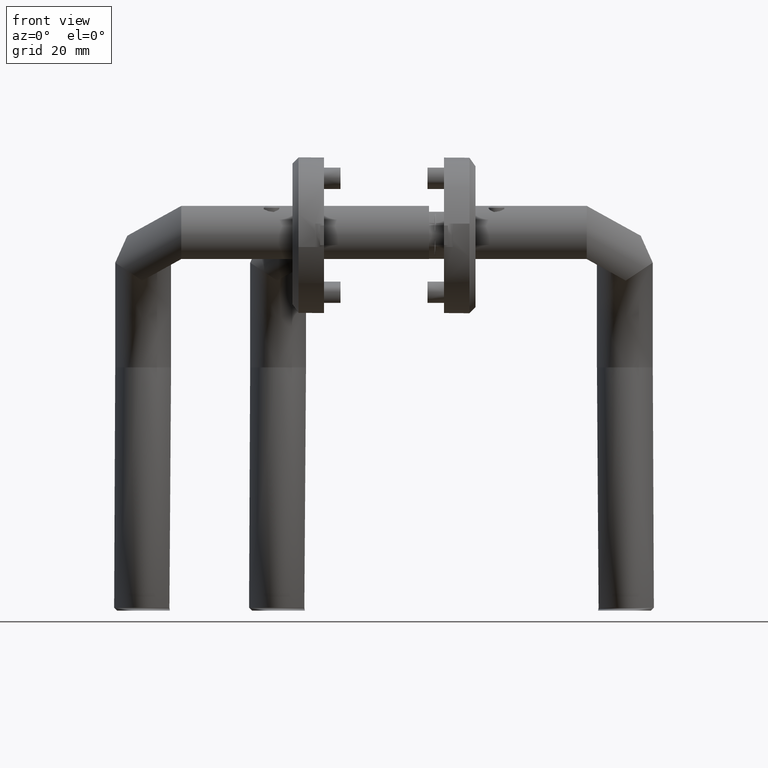
[diagram: clean part render]
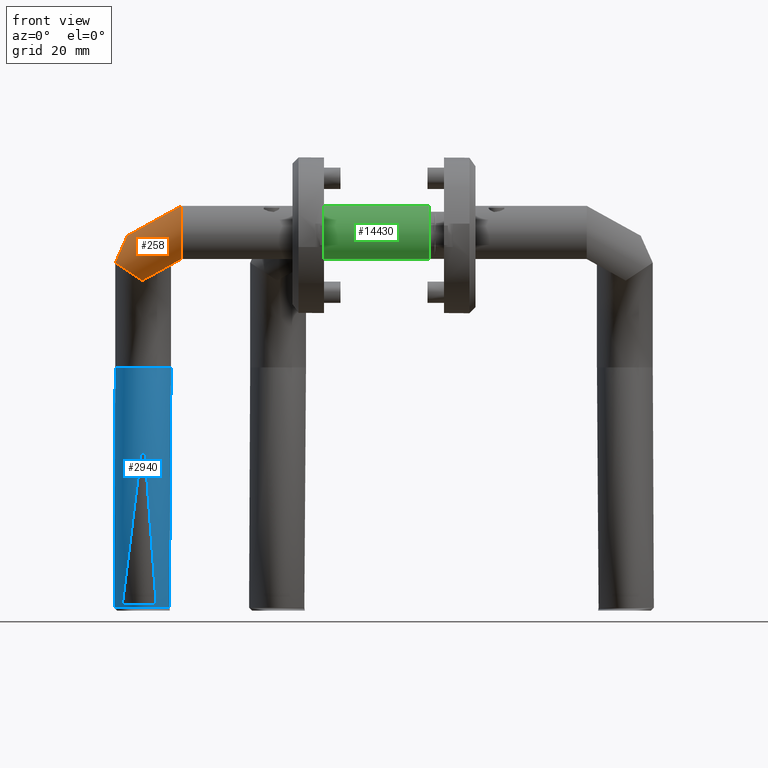
[diagram: same view with three faces highlighted in distinct colors, each labeled with its STEP entity id]
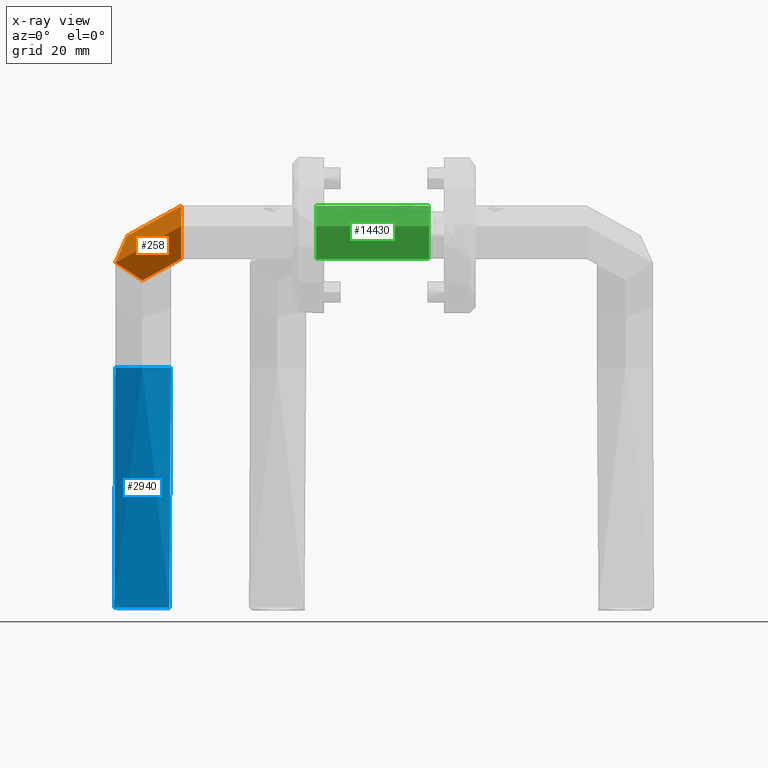
[diagram: x-ray of the same camera — body ghosted, the three highlighted faces saturated]
A machine part, front view with three faces highlighted in distinct colors.
The next image is the same camera in x-ray (body ghosted, the three faces saturated) — at least one of them is partly hidden behind the body in this view.
Their STEP definitions:

[orange] entity #258 — the highlighted toroidal blend (fillet) surface has major radius 12.5828 mm and minor (blend) radius 9.8 mm.
#60 = EDGE_CURVE ( 'NONE', #36857, #36857, #34073, .T. ) ;
#258 = ADVANCED_FACE ( 'NONE', ( #4064, #32762 ), #23757, .T. ) ;
#372 = CIRCLE ( 'NONE', #3111, 9.799999999999998900 ) ;
#389 = CARTESIAN_POINT ( 'NONE',  ( -9.799999999999997200, -1.734723475976809100E-015, 37.62000000000002600 ) ) ;
#2066 = CARTESIAN_POINT ( 'NONE',  ( -9.949874806381942000, 14.99999999999999800, 55.62000000000005400 ) ) ;
#3111 = AXIS2_PLACEMENT_3D ( 'NONE', #389, #31972, #3270 ) ;
#3270 = DIRECTION ( 'NONE',  ( 1.000000000000000000, 0.0000000000000000000, 0.0000000000000000000 ) ) ;
#4064 = FACE_OUTER_BOUND ( 'NONE', #31751, .T. ) ;
#5427 = AXIS2_PLACEMENT_3D ( 'NONE', #11252, #22555, #14413 ) ;
#6390 = VERTEX_POINT ( 'NONE', #20257 ) ;
#7420 = EDGE_LOOP ( 'NONE', ( #31808 ) ) ;
#8936 = EDGE_CURVE ( 'NONE', #6390, #6390, #372, .T. ) ;
#9901 = DIRECTION ( 'NONE',  ( 0.6944444217925621600, 0.4606423459892952700, 0.5527708151871555400 ) ) ;
#10385 = DIRECTION ( 'NONE',  ( -0.5527708151871552100, 0.8333333221930632200, -1.336832283188241700E-008 ) ) ;
#11252 = CARTESIAN_POINT ( 'NONE',  ( -16.75543004696662000, 10.48570486912860900, 37.62000000000002600 ) ) ;
#14413 = DIRECTION ( 'NONE',  ( 0.5527708151871553200, -0.8333333221930633300, 0.0000000000000000000 ) ) ;
#17837 = CARTESIAN_POINT ( 'NONE',  ( -16.75543013994905600, 10.48570500930490100, 50.20284601116592400 ) ) ;
#20257 = CARTESIAN_POINT ( 'NONE',  ( 1.734723475976807100E-015, -1.734723475976809100E-015, 37.62000000000002600 ) ) ;
#22555 = DIRECTION ( 'NONE',  ( -0.8333333221930633300, -0.5527708151871553200, -1.479114197289397100E-031 ) ) ;
#23757 = TOROIDAL_SURFACE ( 'NONE', #5427, 12.58284601116589700, 9.799999999999998900 ) ;
#31751 = EDGE_LOOP ( 'NONE', ( #31970 ) ) ;
#31808 = ORIENTED_EDGE ( 'NONE', *, *, #60, .F. ) ;
#31970 = ORIENTED_EDGE ( 'NONE', *, *, #8936, .T. ) ;
#31972 = DIRECTION ( 'NONE',  ( 1.972152263052526900E-031, 3.889170968374258800E-034, 1.000000000000000000 ) ) ;
#32762 = FACE_OUTER_BOUND ( 'NONE', #7420, .T. ) ;
#34073 = CIRCLE ( 'NONE', #34460, 9.800000000000004300 ) ;
#34460 = AXIS2_PLACEMENT_3D ( 'NONE', #17837, #10385, #9901 ) ;
#36857 = VERTEX_POINT ( 'NONE', #2066 ) ;

[blue] entity #2940 — the highlighted cylindrical surface (bore or boss wall) has radius 9.8 mm, axis along (0, -0, -1).
#34 = CARTESIAN_POINT ( 'NONE',  ( -133.9999998340617500, 22.98758264614948400, 43.75997440108039200 ) ) ;
#163 = CARTESIAN_POINT ( 'NONE',  ( -133.9999998113810900, 24.91418811443136500, 42.06338029171823200 ) ) ;
#285 = CARTESIAN_POINT ( 'NONE',  ( -134.0000000444807100, 27.28487706896909500, 59.50009098632537500 ) ) ;
#415 = CARTESIAN_POINT ( 'NONE',  ( -134.0000000377327500, 34.77521608518718900, 58.99532257967581500 ) ) ;
#533 = CARTESIAN_POINT ( 'NONE',  ( -133.9999997934388900, 32.89855314139711600, 40.72123111473797500 ) ) ;
#788 = CARTESIAN_POINT ( 'NONE',  ( -133.9999997960202100, 27.20940971644354200, 40.91431821275695300 ) ) ;
#901 = CARTESIAN_POINT ( 'NONE',  ( -133.9999998333053400, 37.74168603474720400, 43.70339725740008400 ) ) ;
#1463 = B_SPLINE_CURVE_WITH_KNOTS ( 'NONE', 3,
 ( #25845, #8560, #9072, #3296, #14599, #2918, #14238, #11808, #415, #37114, #11936, #26097, #34616, #31874, #8943, #17613, #17489, #11450, #20004, #22843, #285, #23101, #17234, #14476, #23224, #6060, #11687, #31511, #5939, #20502, #5694, #25968, #8811, #23347, #20369, #29124, #22968, #17363, #5812, #34378, #34249, #3169, #25720, #28628, #34493, #14352, #20123, #34, #28746, #8682, #11570, #163, #20245, #3044, #12328, #788, #9559, #29604, #32494, #20620, #3662, #23828, #32127, #17975, #533, #18098, #6678, #31998, #26346, #18227, #23709, #14850, #901, #23596, #29239, #6438, #20862, #35236, #9436, #21110, #29372, #20984, #6569, #26584, #3423, #26841, #34865, #17730, #26460, #3787 ),
 .UNSPECIFIED., .T., .F.,
 ( 4, 2, 2, 2, 2, 2, 2, 2, 2, 1, 2, 2, 2, 2, 2, 2, 2, 2, 2, 2, 2, 2, 2, 2, 2, 2, 1, 2, 2, 2, 2, 2, 2, 2, 2, 2, 2, 2, 2, 2, 2, 2, 2, 2, 2, 4 ),
 ( 0.0000000000000000000, 0.001914739025684503500, 0.002872108538526763100, 0.003829478051369022200, 0.005744217077053558200, 0.006701586589895825600, 0.007658956102738093800, 0.009573695128422602500, 0.01053106464126485900, 0.01148843415410711500, 0.01244580366694937100, 0.01340317317979162300, 0.01531791220547614400, 0.01627528171831840400, 0.01723265123116066200, 0.01914739025684517700, 0.02010475976968744600, 0.02106212928252971400, 0.02297686830821427100, 0.02489160733389882500, 0.02584897684674111000, 0.02680634635958339300, 0.02872108538526795000, 0.03063582441095250400, 0.03255056343663706400, 0.03350793294947933300, 0.03446530246232160800, 0.03542267197516388300, 0.03638004148800615100, 0.03829478051369070200, 0.03925215002653297000, 0.04020951953937524500, 0.04212425856505979500, 0.04308162807790207000, 0.04403899759074433900, 0.04595373661642889600, 0.04786847564211344600, 0.04882584515495572200, 0.04978321466779800400, 0.05169795369348256800, 0.05361269271916712500, 0.05552743174485169600, 0.05648480125769398500, 0.05744217077053628100, 0.05935690979622086600, 0.06127164882190544400 ),
 .UNSPECIFIED. ) ;
#1693 = EDGE_LOOP ( 'NONE', ( #17464 ) ) ;
#2918 = CARTESIAN_POINT ( 'NONE',  ( -134.0000000238968300, 36.39705589523804700, 57.96034538268082100 ) ) ;
#2940 = ADVANCED_FACE ( 'NONE', ( #10160, #21403 ), #25403, .T. ) ;
#3044 = CARTESIAN_POINT ( 'NONE',  ( -133.9999998028879100, 26.02441776357111200, 41.42805705794921800 ) ) ;
#3169 = CARTESIAN_POINT ( 'NONE',  ( -133.9999998993151300, 20.71989456900697800, 48.64117057743857900 ) ) ;
#3296 = CARTESIAN_POINT ( 'NONE',  ( -134.0000000155307600, 37.12911607972355900, 57.33453095632370400 ) ) ;
#3423 = CARTESIAN_POINT ( 'NONE',  ( -133.9999999409912200, 40.08097216338254800, 51.75869407592399100 ) ) ;
#3662 = CARTESIAN_POINT ( 'NONE',  ( -133.9999997892001300, 30.04162998155738500, 40.40415630035979400 ) ) ;
#3787 = CARTESIAN_POINT ( 'NONE',  ( -133.9999999926103800, 38.56666779314218700, 55.62000001033854300 ) ) ;
#5022 = VERTEX_POINT ( 'NONE', #26357 ) ;
#5694 = CARTESIAN_POINT ( 'NONE',  ( -133.9999999898597300, 22.09431814191763300, 55.41424207363135700 ) ) ;
#5812 = CARTESIAN_POINT ( 'NONE',  ( -133.9999999164442100, 20.59881323392552600, 49.92248716186905000 ) ) ;
#5939 = CARTESIAN_POINT ( 'NONE',  ( -134.0000000071083800, 23.03935970706981700, 56.70450090096360200 ) ) ;
#6060 = CARTESIAN_POINT ( 'NONE',  ( -134.0000000245064200, 24.46233534588271800, 58.00594155995956700 ) ) ;
#6438 = CARTESIAN_POINT ( 'NONE',  ( -133.9999998540923800, 38.88561649121314200, 45.25834304091658600 ) ) ;
#6569 = CARTESIAN_POINT ( 'NONE',  ( -133.9999999282116200, 40.18689403654583000, 50.80273637632407000 ) ) ;
#6678 = CARTESIAN_POINT ( 'NONE',  ( -133.9999997973343700, 33.81787746490142200, 41.01262740853304200 ) ) ;
#8560 = CARTESIAN_POINT ( 'NONE',  ( -133.9999999998229300, 38.20878421042817800, 56.15952978638294000 ) ) ;
#8682 = CARTESIAN_POINT ( 'NONE',  ( -133.9999998219652200, 23.90740342677787200, 42.85511303931605900 ) ) ;
#8811 = CARTESIAN_POINT ( 'NONE',  ( -133.9999999785679800, 21.62074775393218600, 54.56957547179438000 ) ) ;
#8943 = CARTESIAN_POINT ( 'NONE',  ( -134.0000000511682900, 31.08132824136659900, 60.00034566830030500 ) ) ;
#9072 = CARTESIAN_POINT ( 'NONE',  ( -134.0000000064456500, 37.80394064184309900, 56.65492691337682600 ) ) ;
#9436 = CARTESIAN_POINT ( 'NONE',  ( -133.9999998857172700, 39.87622821672906100, 47.62399733857653700 ) ) ;
#9559 = CARTESIAN_POINT ( 'NONE',  ( -133.9999997935144600, 27.82037432214357900, 40.72688922824314500 ) ) ;
#10160 = FACE_OUTER_BOUND ( 'NONE', #1693, .T. ) ;
#11082 = EDGE_LOOP ( 'NONE', ( #27044 ) ) ;
#11450 = CARTESIAN_POINT ( 'NONE',  ( -134.0000000502056700, 29.15198154489119600, 59.92834471966442300 ) ) ;
#11570 = CARTESIAN_POINT ( 'NONE',  ( -133.9999998164968800, 24.40207041329043800, 42.44605386351029400 ) ) ;
#11687 = CARTESIAN_POINT ( 'NONE',  ( -134.0000000190575200, 23.96176861106114600, 57.59834038456129000 ) ) ;
#11808 = CARTESIAN_POINT ( 'NONE',  ( -134.0000000336864900, 35.33720688758043600, 58.69264092268726100 ) ) ;
#11936 = CARTESIAN_POINT ( 'NONE',  ( -134.0000000441630700, 33.58540863144499900, 59.47633219423710900 ) ) ;
#12328 = CARTESIAN_POINT ( 'NONE',  ( -133.9999998010203500, 26.31638100669679400, 41.28835211040653500 ) ) ;
#14121 = AXIS2_PLACEMENT_3D ( 'NONE', #33583, #25058, #27957 ) ;
#14238 = CARTESIAN_POINT ( 'NONE',  ( -134.0000000264966800, 36.13666539816462400, 58.15481675247035300 ) ) ;
#14352 = CARTESIAN_POINT ( 'NONE',  ( -133.9999998549389200, 21.87808629541504500, 45.32165917538088700 ) ) ;
#14476 = CARTESIAN_POINT ( 'NONE',  ( -134.0000000341242400, 25.51996661977341300, 58.72538837916462000 ) ) ;
#14599 = CARTESIAN_POINT ( 'NONE',  ( -134.0000000184167000, 36.89283096288708900, 57.55040500916293700 ) ) ;
#14833 = AXIS2_PLACEMENT_3D ( 'NONE', #23118, #34634, #34757 ) ;
#14850 = CARTESIAN_POINT ( 'NONE',  ( -133.9999998301518100, 37.52578786881461800, 43.46748929035932500 ) ) ;
#17234 = CARTESIAN_POINT ( 'NONE',  ( -134.0000000381294000, 26.08425507961945700, 59.02499053168215700 ) ) ;
#17363 = CARTESIAN_POINT ( 'NONE',  ( -133.9999999292454300, 20.60260812239431900, 50.88007411585872600 ) ) ;
#17464 = ORIENTED_EDGE ( 'NONE', *, *, #31887, .T. ) ;
#17489 = CARTESIAN_POINT ( 'NONE',  ( -134.0000000510183900, 29.79059525128767300, 59.98913770696936600 ) ) ;
#17613 = CARTESIAN_POINT ( 'NONE',  ( -134.0000000512169400, 30.11478789986101700, 60.00399159991763300 ) ) ;
#17730 = CARTESIAN_POINT ( 'NONE',  ( -133.9999999777905100, 39.22577746980497400, 54.51141411557755100 ) ) ;
#17975 = CARTESIAN_POINT ( 'NONE',  ( -133.9999997924033700, 32.58336183519672600, 40.64377539826272600 ) ) ;
#18098 = CARTESIAN_POINT ( 'NONE',  ( -133.9999997959060900, 33.51585995316808900, 40.90579233105789600 ) ) ;
#18227 = CARTESIAN_POINT ( 'NONE',  ( -133.9999998157112500, 36.34766491641485000, 42.38729430513299000 ) ) ;
#20004 = CARTESIAN_POINT ( 'NONE',  ( -134.0000000489789600, 28.51950760998792600, 59.83657678596836900 ) ) ;
#20123 = CARTESIAN_POINT ( 'NONE',  ( -133.9999998406860900, 22.58475437757665800, 44.25549906218874000 ) ) ;
#20245 = CARTESIAN_POINT ( 'NONE',  ( -133.9999998069590700, 25.46062202395208700, 41.73259306984610400 ) ) ;
#20369 = CARTESIAN_POINT ( 'NONE',  ( -133.9999999628914200, 21.11314088069120500, 53.39690858004955500 ) ) ;
#20502 = CARTESIAN_POINT ( 'NONE',  ( -134.0000000005337900, 22.63251792446664400, 56.21269506527669800 ) ) ;
#20620 = CARTESIAN_POINT ( 'NONE',  ( -133.9999997894291300, 29.71798050694725300, 40.42128978182148600 ) ) ;
#20862 = CARTESIAN_POINT ( 'NONE',  ( -133.9999998616043200, 39.18876221430777900, 45.82025615675370700 ) ) ;
#20984 = CARTESIAN_POINT ( 'NONE',  ( -133.9999999238715400, 40.20141570783290800, 50.47807799378975300 ) ) ;
#21110 = CARTESIAN_POINT ( 'NONE',  ( -133.9999999024805100, 40.13108505550388100, 48.87795131062539900 ) ) ;
#21403 = FACE_OUTER_BOUND ( 'NONE', #11082, .T. ) ;
#22843 = CARTESIAN_POINT ( 'NONE',  ( -134.0000000469365800, 27.89912767430703200, 59.68379502171166000 ) ) ;
#22968 = CARTESIAN_POINT ( 'NONE',  ( -133.9999999377748500, 20.66714693618140700, 51.51810007959657200 ) ) ;
#23101 = CARTESIAN_POINT ( 'NONE',  ( -134.0000000430370600, 26.97924289934445200, 59.39209990245208100 ) ) ;
#23118 = CARTESIAN_POINT ( 'NONE',  ( -53.86223608625939400, 30.40000124250794800, 50.20284601116592400 ) ) ;
#23224 = CARTESIAN_POINT ( 'NONE',  ( -134.0000000270457300, 24.72079322656847500, 58.19588754083685700 ) ) ;
#23347 = CARTESIAN_POINT ( 'NONE',  ( -133.9999999747043700, 21.48292609546141200, 54.28055659314470200 ) ) ;
#23596 = CARTESIAN_POINT ( 'NONE',  ( -133.9999998399185600, 38.15151838054703900, 44.19808525405732500 ) ) ;
#23709 = CARTESIAN_POINT ( 'NONE',  ( -133.9999998211405600, 36.84577028917669100, 42.79342483285035600 ) ) ;
#23828 = CARTESIAN_POINT ( 'NONE',  ( -133.9999997891504200, 31.00326208696755300, 40.40044444874894900 ) ) ;
#25058 = DIRECTION ( 'NONE',  ( -0.9999999999999998900, 1.665334536937734800E-016, -1.336832283188241700E-008 ) ) ;
#25403 = CYLINDRICAL_SURFACE ( 'NONE', #14833, 9.800000000000016700 ) ;
#25720 = CARTESIAN_POINT ( 'NONE',  ( -133.9999998866642800, 20.90457792778064000, 47.69483533399675000 ) ) ;
#25845 = CARTESIAN_POINT ( 'NONE',  ( -133.9999999926103800, 38.56666779314218700, 55.62000001033854300 ) ) ;
#25968 = CARTESIAN_POINT ( 'NONE',  ( -133.9999999861438500, 21.92622728528657900, 55.13628020256919600 ) ) ;
#26097 = CARTESIAN_POINT ( 'NONE',  ( -134.0000000466984000, 32.96775459487222500, 59.66598549774904100 ) ) ;
#26346 = CARTESIAN_POINT ( 'NONE',  ( -133.9999998061759400, 35.26996559025106800, 41.67401262674008000 ) ) ;
#26357 = CARTESIAN_POINT ( 'NONE',  ( -133.9999999926103800, 38.56666779314218700, 55.62000001033855100 ) ) ;
#26460 = CARTESIAN_POINT ( 'NONE',  ( -133.9999999853978600, 38.92455137585621800, 55.08047023429413300 ) ) ;
#26584 = CARTESIAN_POINT ( 'NONE',  ( -133.9999999367603000, 40.12662051312562300, 51.44220736954726200 ) ) ;
#26841 = CARTESIAN_POINT ( 'NONE',  ( -133.9999999535560300, 39.89835450164483900, 52.69858839578171900 ) ) ;
#27044 = ORIENTED_EDGE ( 'NONE', *, *, #34348, .T. ) ;
#27957 = DIRECTION ( 'NONE',  ( -7.389618254040299400E-009, 0.8333333221930631100, 0.5527708151871555400 ) ) ;
#28628 = CARTESIAN_POINT ( 'NONE',  ( -133.9999998784889500, 21.08774285028178100, 47.08329307406938100 ) ) ;
#28746 = CARTESIAN_POINT ( 'NONE',  ( -133.9999998248936200, 23.66757570251272800, 43.07416574365903000 ) ) ;
#29124 = CARTESIAN_POINT ( 'NONE',  ( -133.9999999547226500, 20.92443073058779400, 52.78585001548569300 ) ) ;
#29136 = CARTESIAN_POINT ( 'NONE',  ( -53.86223615867765300, 38.56666779999996900, 55.62000000000005400 ) ) ;
#29239 = CARTESIAN_POINT ( 'NONE',  ( -133.9999998433968600, 38.34627923384016400, 44.45827378797687900 ) ) ;
#29372 = CARTESIAN_POINT ( 'NONE',  ( -133.9999999109706400, 40.19684214112003000, 49.51304816495104400 ) ) ;
#29604 = CARTESIAN_POINT ( 'NONE',  ( -133.9999997909604600, 28.75953547850619100, 40.53584388655870900 ) ) ;
#31511 = CARTESIAN_POINT ( 'NONE',  ( -134.0000000161627200, 23.72128623615350300, 57.38180177741129000 ) ) ;
#31874 = CARTESIAN_POINT ( 'NONE',  ( -134.0000000502948900, 31.71671527321500500, 59.93500881751465700 ) ) ;
#31887 = EDGE_CURVE ( 'NONE', #5022, #5022, #1463, .T. ) ;
#31998 = CARTESIAN_POINT ( 'NONE',  ( -133.9999998021876300, 34.70453424221813800, 41.37567324761731400 ) ) ;
#32127 = CARTESIAN_POINT ( 'NONE',  ( -133.9999997899506400, 31.63869952041163800, 40.46029991596987700 ) ) ;
#32494 = CARTESIAN_POINT ( 'NONE',  ( -133.9999997903114800, 29.07640235103382800, 40.48728732799951800 ) ) ;
#33583 = CARTESIAN_POINT ( 'NONE',  ( -53.86223608625939400, 30.40000124250794800, 50.20284601116592400 ) ) ;
#33689 = VERTEX_POINT ( 'NONE', #29136 ) ;
#34249 = CARTESIAN_POINT ( 'NONE',  ( -133.9999999036159900, 20.67344903447723700, 48.96288886002300700 ) ) ;
#34348 = EDGE_CURVE ( 'NONE', #33689, #33689, #34904, .T. ) ;
#34378 = CARTESIAN_POINT ( 'NONE',  ( -133.9999999121717700, 20.61310349631179400, 49.60289259820939400 ) ) ;
#34493 = CARTESIAN_POINT ( 'NONE',  ( -133.9999998626493000, 21.57267252039457600, 45.89842566427989100 ) ) ;
#34616 = CARTESIAN_POINT ( 'NONE',  ( -134.0000000477525600, 32.65664977098957400, 59.74484368465581200 ) ) ;
#34634 = DIRECTION ( 'NONE',  ( -1.000000000000000000, 0.0000000000000000000, -1.848892746611746400E-031 ) ) ;
#34757 = DIRECTION ( 'NONE',  ( 0.0000000000000000000, 0.0000000000000000000, 1.000000000000000000 ) ) ;
#34865 = CARTESIAN_POINT ( 'NONE',  ( -133.9999999617894300, 39.71535553745796700, 53.31447894006850400 ) ) ;
#34904 = CIRCLE ( 'NONE', #14121, 9.800000000000004300 ) ;
#35236 = CARTESIAN_POINT ( 'NONE',  ( -133.9999998773788300, 39.68400838828161900, 47.00024947575100500 ) ) ;
#37114 = CARTESIAN_POINT ( 'NONE',  ( -134.0000000426920800, 33.88909215148054000, 59.36629415642075000 ) ) ;

[green] entity #14430 — the highlighted cylindrical surface (bore or boss wall) has radius 9.8 mm, axis along (1, 0, -0).
#2003 = CARTESIAN_POINT ( 'NONE',  ( -0.2454372364567606300, 2.183371196653805000, 6.238704896996660300 ) ) ;
#2131 = CARTESIAN_POINT ( 'NONE',  ( -0.1185305898498484600, -1.525756175294356900, 5.512864183120870000 ) ) ;
#2132 = ORIENTED_EDGE ( 'NONE', *, *, #10301, .T. ) ;
#2260 = CARTESIAN_POINT ( 'NONE',  ( -0.3199790666396095100, -2.484006566528221200, 7.826384042917123200 ) ) ;
#2505 = CARTESIAN_POINT ( 'NONE',  ( -0.3032711140302977200, 2.419349083781707300, 8.151056087896012800 ) ) ;
#3001 = CARTESIAN_POINT ( 'NONE',  ( -9.799999999999997200, -1.734723475976807100E-015, 37.61999999999999000 ) ) ;
#3337 = B_SPLINE_CURVE_WITH_KNOTS ( 'NONE', 3,
 ( #33463, #28336, #4910, #8166, #31092, #5278, #13548, #30968, #22074, #16335, #11146, #5148, #2505, #19212, #10772, #33697, #31223, #8049, #10650, #2003, #28214, #36829, #22569, #16580, #30708, #33584, #16456, #36447, #13805, #13931, #19332, #16702, #19591, #2131, #33954, #16825, #19704, #7917, #5399, #22204, #27958, #36579, #30837, #19461, #2260, #22319, #28091, #10909, #20684, #9271, #35675, #16036, #9595, #29753, #27258, #33020, #16622, #17103 ),
 .UNSPECIFIED., .T., .F.,
 ( 4, 2, 2, 2, 2, 2, 2, 2, 2, 2, 2, 2, 2, 2, 2, 2, 2, 2, 2, 2, 2, 2, 2, 2, 2, 2, 2, 2, 4 ),
 ( 0.0000000000000000000, 0.0004904772195936976200, 0.0009809544391873952500, 0.001471431658781092900, 0.001961908878374790500, 0.002942863317562185700, 0.003433340537155883100, 0.003923817756749581000, 0.004414294976343278800, 0.004904772195936976700, 0.005885726635124369700, 0.006376203854718066700, 0.006866681074311762800, 0.007357158293905459800, 0.007847635513499156800, 0.008828589952686550700, 0.009319067172280247700, 0.009809544391873941200, 0.01030002161146763800, 0.01079049883106133300, 0.01128097605065503000, 0.01177145327024872600, 0.01226193048984242300, 0.01275240770943611800, 0.01373336214862350500, 0.01422383936821719800, 0.01471431658781089000, 0.01520479380740458400, 0.01569527102699827500 ),
 .UNSPECIFIED. ) ;
#4828 = AXIS2_PLACEMENT_3D ( 'NONE', #18231, #23955, #35467 ) ;
#4910 = CARTESIAN_POINT ( 'NONE',  ( -0.004206600728481162100, 0.3288885871912474200, 9.983651740766511300 ) ) ;
#5148 = CARTESIAN_POINT ( 'NONE',  ( -0.2909172645024563600, 2.370964932448639500, 8.309319672243972800 ) ) ;
#5278 = CARTESIAN_POINT ( 'NONE',  ( -0.06198656234479964200, 1.110938121098267800, 9.745581607782952500 ) ) ;
#5399 = CARTESIAN_POINT ( 'NONE',  ( -0.2603281164761357400, -2.244750030947458200, 6.387240606803041800 ) ) ;
#5705 = CARTESIAN_POINT ( 'NONE',  ( 0.0000000000000000000, 0.0000000000000000000, 9.999999999999998200 ) ) ;
#6487 = FACE_OUTER_BOUND ( 'NONE', #10583, .T. ) ;
#6611 = CIRCLE ( 'NONE', #4828, 9.799999999999998900 ) ;
#7917 = CARTESIAN_POINT ( 'NONE',  ( -0.2422896661976808900, -2.167654281295325900, 6.243951638453005200 ) ) ;
#8049 = CARTESIAN_POINT ( 'NONE',  ( -0.3033394374289644600, 2.419614371200401200, 6.850167515654153900 ) ) ;
#8166 = CARTESIAN_POINT ( 'NONE',  ( -0.02022001733421038800, 0.6493377508243617400, 9.919721917401155100 ) ) ;
#8764 = DIRECTION ( 'NONE',  ( -1.000000000000000000, 0.0000000000000000000, 0.0000000000000000000 ) ) ;
#9271 = CARTESIAN_POINT ( 'NONE',  ( -0.1399357609557997100, -1.654309899104502900, 9.381375368770458000 ) ) ;
#9362 = ORIENTED_EDGE ( 'NONE', *, *, #22891, .T. ) ;
#9595 = CARTESIAN_POINT ( 'NONE',  ( -0.06210011086398032500, -1.111831946282839200, 9.745084355556688400 ) ) ;
#10301 = EDGE_CURVE ( 'NONE', #14022, #14022, #6611, .T. ) ;
#10583 = EDGE_LOOP ( 'NONE', ( #2132 ) ) ;
#10650 = CARTESIAN_POINT ( 'NONE',  ( -0.2912225103693279500, 2.372202668177644900, 6.693992381611519900 ) ) ;
#10676 = AXIS2_PLACEMENT_3D ( 'NONE', #3001, #14426, #8764 ) ;
#10772 = CARTESIAN_POINT ( 'NONE',  ( -0.3242138757993623900, 2.499895465810965300, 7.665386559907906500 ) ) ;
#10909 = CARTESIAN_POINT ( 'NONE',  ( -0.2456095496539109600, -2.184076996224839600, 8.759517845260656800 ) ) ;
#11146 = CARTESIAN_POINT ( 'NONE',  ( -0.2455063996937687500, 2.183613694649702500, 8.760048968757729400 ) ) ;
#13548 = CARTESIAN_POINT ( 'NONE',  ( -0.07963079918187809800, 1.254269749442054500, 9.668738777192352500 ) ) ;
#13805 = CARTESIAN_POINT ( 'NONE',  ( -1.775902691166464600E-005, 0.1646096896668786900, 5.000069615391338700 ) ) ;
#13931 = CARTESIAN_POINT ( 'NONE',  ( 3.534584798831400900E-005, -0.3260372883747040800, 4.999861444264215700 ) ) ;
#14022 = VERTEX_POINT ( 'NONE', #25601 ) ;
#14426 = DIRECTION ( 'NONE',  ( -4.611173514026602100E-017, 4.611173514026602100E-017, -1.000000000000000000 ) ) ;
#14430 = ADVANCED_FACE ( 'NONE', ( #36953, #21300, #6487 ), #19484, .T. ) ;
#16036 = CARTESIAN_POINT ( 'NONE',  ( -0.07973867492358792400, -1.255165081136402600, 9.668275101107783000 ) ) ;
#16335 = CARTESIAN_POINT ( 'NONE',  ( -0.2029243739203628900, 1.997646156598980700, 9.037793714554506900 ) ) ;
#16456 = CARTESIAN_POINT ( 'NONE',  ( -0.02042295698648080900, 0.6525806098935201800, 5.081094393468563700 ) ) ;
#16580 = CARTESIAN_POINT ( 'NONE',  ( -0.07993515577942310300, 1.256567421003659700, 5.332633428498496600 ) ) ;
#16622 = CARTESIAN_POINT ( 'NONE',  ( 8.893845946170136600E-018, -0.1658972328802197900, 10.00000000000000000 ) ) ;
#16702 = CARTESIAN_POINT ( 'NONE',  ( -0.06167895857551277500, -1.108153674358352200, 5.253095956472527000 ) ) ;
#16825 = CARTESIAN_POINT ( 'NONE',  ( -0.1816699612569172300, -1.881881833777883500, 5.846188051856023200 ) ) ;
#17103 = CARTESIAN_POINT ( 'NONE',  ( 6.823320963992838100E-019, 2.981555974335137200E-016, 9.999999999999998200 ) ) ;
#17248 = CARTESIAN_POINT ( 'NONE',  ( 1.734723475976807100E-015, -1.734723475976807100E-015, 37.61999999999999000 ) ) ;
#18231 = CARTESIAN_POINT ( 'NONE',  ( -9.799999999999998900, 0.0000000000000000000, 0.0000000000000000000 ) ) ;
#18233 = CIRCLE ( 'NONE', #36242, 9.799999999999998900 ) ;
#19080 = ORIENTED_EDGE ( 'NONE', *, *, #25003, .F. ) ;
#19212 = CARTESIAN_POINT ( 'NONE',  ( -0.3199367370857025800, 2.483849845290462700, 7.828045674917977900 ) ) ;
#19332 = CARTESIAN_POINT ( 'NONE',  ( -0.01731965858525343100, -0.6563310331507703500, 5.065752896236838300 ) ) ;
#19461 = CARTESIAN_POINT ( 'NONE',  ( -0.3242633206209104000, -2.500082876720870900, 7.663648044584544300 ) ) ;
#19484 = CYLINDRICAL_SURFACE ( 'NONE', #10676, 9.800000000000000700 ) ;
#19591 = CARTESIAN_POINT ( 'NONE',  ( -0.07965136943626628700, -1.254433874869351100, 5.331351500414826600 ) ) ;
#19606 = EDGE_LOOP ( 'NONE', ( #9362 ) ) ;
#19704 = CARTESIAN_POINT ( 'NONE',  ( -0.2030856745485044600, -1.986903957928884500, 5.974026464276202700 ) ) ;
#20684 = CARTESIAN_POINT ( 'NONE',  ( -0.2030453551168183200, -1.998196917973326500, 9.037031931668064300 ) ) ;
#20714 = VERTEX_POINT ( 'NONE', #5705 ) ;
#21300 = FACE_OUTER_BOUND ( 'NONE', #26178, .T. ) ;
#22074 = CARTESIAN_POINT ( 'NONE',  ( -0.1397732700690461900, 1.653369955951829600, 9.382210856315079900 ) ) ;
#22204 = CARTESIAN_POINT ( 'NONE',  ( -0.2910079100899631300, -2.371352310552507200, 6.691405919002646000 ) ) ;
#22319 = CARTESIAN_POINT ( 'NONE',  ( -0.3034912852203758300, -2.420208203775281700, 8.147616720294548600 ) ) ;
#22569 = CARTESIAN_POINT ( 'NONE',  ( -0.1186920950575941400, 1.526728367811466300, 5.513661652761617100 ) ) ;
#22891 = EDGE_CURVE ( 'NONE', #20714, #20714, #3337, .T. ) ;
#23955 = DIRECTION ( 'NONE',  ( 0.0000000000000000000, 0.0000000000000000000, 1.000000000000000000 ) ) ;
#24387 = DIRECTION ( 'NONE',  ( 0.0000000000000000000, 0.0000000000000000000, 1.000000000000000000 ) ) ;
#25003 = EDGE_CURVE ( 'NONE', #31912, #31912, #18233, .T. ) ;
#25601 = CARTESIAN_POINT ( 'NONE',  ( 0.0000000000000000000, 0.0000000000000000000, 0.0000000000000000000 ) ) ;
#26178 = EDGE_LOOP ( 'NONE', ( #19080 ) ) ;
#27258 = CARTESIAN_POINT ( 'NONE',  ( -0.02035144488384300200, -0.6515257115221748700, 9.919193927932864700 ) ) ;
#27284 = DIRECTION ( 'NONE',  ( 1.000000000000000000, 0.0000000000000000000, 0.0000000000000000000 ) ) ;
#27531 = CARTESIAN_POINT ( 'NONE',  ( -9.799999999999997200, -1.734723475976807100E-015, 37.61999999999999000 ) ) ;
#27958 = CARTESIAN_POINT ( 'NONE',  ( -0.3032269662662330200, -2.419173245366685000, 6.848668984835728500 ) ) ;
#28091 = CARTESIAN_POINT ( 'NONE',  ( -0.2911054904295665700, -2.371722476732263600, 8.307203119019693100 ) ) ;
#28214 = CARTESIAN_POINT ( 'NONE',  ( -0.2032424808274734000, 1.999407976831237800, 5.963915349630971400 ) ) ;
#28336 = CARTESIAN_POINT ( 'NONE',  ( -7.529181753371627700E-018, 0.1658972328802216000, 9.999999999999996400 ) ) ;
#29753 = CARTESIAN_POINT ( 'NONE',  ( -0.03243356118097299300, -0.8108701442688477400, 9.870456422184110700 ) ) ;
#30708 = CARTESIAN_POINT ( 'NONE',  ( -0.06190163135836332400, 1.110142076600780800, 5.254055069445097800 ) ) ;
#30837 = CARTESIAN_POINT ( 'NONE',  ( -0.3242194218421888300, -2.499916487007192200, 7.333829512370966700 ) ) ;
#30968 = CARTESIAN_POINT ( 'NONE',  ( -0.1184919881285199100, 1.525507332216829300, 9.487321782554580800 ) ) ;
#31092 = CARTESIAN_POINT ( 'NONE',  ( -0.03222526855719959300, 0.8084961451053003200, 9.871319094823022100 ) ) ;
#31223 = CARTESIAN_POINT ( 'NONE',  ( -0.3199001735057104300, 2.483707475874418400, 7.171346478314718300 ) ) ;
#31912 = VERTEX_POINT ( 'NONE', #17248 ) ;
#33020 = CARTESIAN_POINT ( 'NONE',  ( -0.004208627328966783000, -0.3293675719675027100, 9.983646918597319300 ) ) ;
#33463 = CARTESIAN_POINT ( 'NONE',  ( 6.823320963992838100E-019, 2.981555974335137200E-016, 9.999999999999998200 ) ) ;
#33584 = CARTESIAN_POINT ( 'NONE',  ( -0.03222695651068016600, 0.8084460640412504100, 5.128692549908183000 ) ) ;
#33697 = CARTESIAN_POINT ( 'NONE',  ( -0.3242687684831054900, 2.500103525782658900, 7.337788981417679300 ) ) ;
#33954 = CARTESIAN_POINT ( 'NONE',  ( -0.1393925503116249000, -1.651186141389332500, 5.615813830161467700 ) ) ;
#35467 = DIRECTION ( 'NONE',  ( 1.000000000000000000, 0.0000000000000000000, 0.0000000000000000000 ) ) ;
#35675 = CARTESIAN_POINT ( 'NONE',  ( -0.1187946192722005600, -1.527475690427674500, 9.485868653798785700 ) ) ;
#36242 = AXIS2_PLACEMENT_3D ( 'NONE', #27531, #24387, #27284 ) ;
#36447 = CARTESIAN_POINT ( 'NONE',  ( -0.004250202253373701200, 0.3305669260421806900, 5.016516299001493100 ) ) ;
#36579 = CARTESIAN_POINT ( 'NONE',  ( -0.3197977296668119700, -2.483316765722872100, 7.168685763220785200 ) ) ;
#36829 = CARTESIAN_POINT ( 'NONE',  ( -0.1395580363200315300, 1.652182753594113400, 5.616628229356953400 ) ) ;
#36953 = FACE_BOUND ( 'NONE', #19606, .T. ) ;